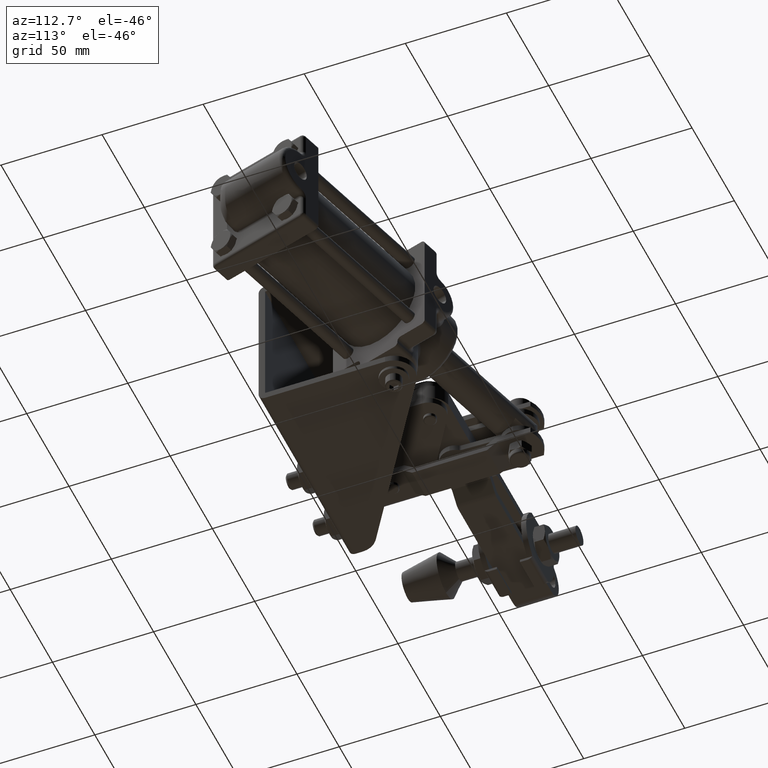
[diagram: clean part render]
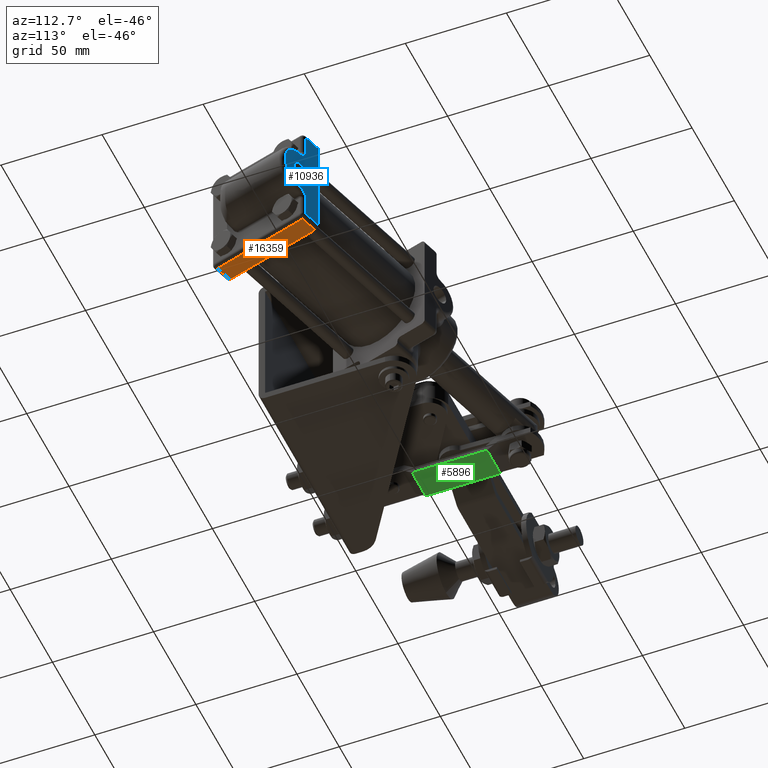
[diagram: same view with three faces highlighted in distinct colors, each labeled with its STEP entity id]
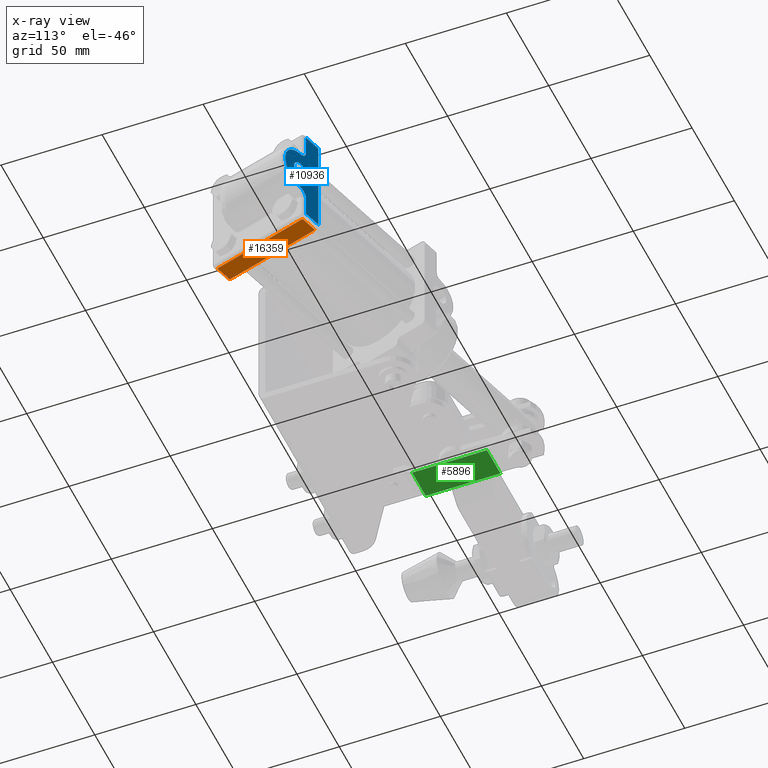
[diagram: x-ray of the same camera — body ghosted, the three highlighted faces saturated]
A machine part, auxiliary view with three faces highlighted in distinct colors.
The next image is the same camera in x-ray (body ghosted, the three faces saturated) — at least one of them is partly hidden behind the body in this view.
Their STEP definitions:

[orange] entity #16359 — the highlighted planar face has unit normal (-0, -0, 1).
#256 = LINE ( 'NONE', #23699, #33009 ) ;
#316 = DIRECTION ( 'NONE',  ( -0.2810313140745087600, -0.9596985987848241100, -7.435643982289015500E-016 ) ) ;
#1243 = PLANE ( 'NONE',  #23985 ) ;
#3454 = EDGE_CURVE ( 'NONE', #22303, #19278, #31876, .T. ) ;
#3845 = DIRECTION ( 'NONE',  ( -0.2810313140745087600, -0.9596985987848241100, -7.435643982289015500E-016 ) ) ;
#5195 = VECTOR ( 'NONE', #17502, 1000.000000000000000 ) ;
#8794 = ORIENTED_EDGE ( 'NONE', *, *, #3454, .T. ) ;
#8840 = CARTESIAN_POINT ( 'NONE',  ( 132.7649812302651900, 8.047497565152058400, -27.00000000000003600 ) ) ;
#11524 = DIRECTION ( 'NONE',  ( -1.701535394197300100E-017, -7.698068454894033500E-016, 1.000000000000000000 ) ) ;
#12055 = EDGE_CURVE ( 'NONE', #19278, #32584, #256, .T. ) ;
#14667 = ORIENTED_EDGE ( 'NONE', *, *, #12055, .T. ) ;
#15043 = CARTESIAN_POINT ( 'NONE',  ( 124.1276938412017900, 10.57677939182263800, -27.00000000000003600 ) ) ;
#16359 = ADVANCED_FACE ( 'NONE', ( #22147 ), #1243, .F. ) ;
#17321 = CARTESIAN_POINT ( 'NONE',  ( 148.7359441315603000, 55.47036487624426800, -26.99999999999999600 ) ) ;
#17365 = VECTOR ( 'NONE', #32805, 1000.000000000000000 ) ;
#17502 = DIRECTION ( 'NONE',  ( 0.2810313140745087600, 0.9596985987848241100, 7.435643982289015500E-016 ) ) ;
#17758 = CARTESIAN_POINT ( 'NONE',  ( 132.2029186021162000, 6.128100367582413300, -27.00000000000003600 ) ) ;
#18084 = EDGE_CURVE ( 'NONE', #33115, #22303, #24272, .T. ) ;
#19177 = ORIENTED_EDGE ( 'NONE', *, *, #27876, .T. ) ;
#19278 = VERTEX_POINT ( 'NONE', #8840 ) ;
#19819 = CARTESIAN_POINT ( 'NONE',  ( 146.8165469339906500, 56.03242750439328300, -26.99999999999999600 ) ) ;
#20094 = CARTESIAN_POINT ( 'NONE',  ( 138.7413221730762400, 60.48110652863350400, -26.99999999999999300 ) ) ;
#20131 = ORIENTED_EDGE ( 'NONE', *, *, #18084, .T. ) ;
#20905 = CARTESIAN_POINT ( 'NONE',  ( 138.1792595449272500, 58.56170933106385900, -26.99999999999999300 ) ) ;
#22147 = FACE_OUTER_BOUND ( 'NONE', #29609, .T. ) ;
#22303 = VERTEX_POINT ( 'NONE', #19819 ) ;
#22652 = DIRECTION ( 'NONE',  ( -0.9596985987848241100, 0.2810313140745087600, 2.000102180355001100E-016 ) ) ;
#23699 = CARTESIAN_POINT ( 'NONE',  ( 134.6843784278348700, 7.485434937003040200, -27.00000000000003600 ) ) ;
#23985 = AXIS2_PLACEMENT_3D ( 'NONE', #32245, #11524, #3845 ) ;
#24272 = LINE ( 'NONE', #17321, #17365 ) ;
#25029 = VECTOR ( 'NONE', #316, 1000.000000000000000 ) ;
#25034 = LINE ( 'NONE', #20094, #5195 ) ;
#27876 = EDGE_CURVE ( 'NONE', #32584, #33115, #25034, .T. ) ;
#29609 = EDGE_LOOP ( 'NONE', ( #8794, #14667, #19177, #20131 ) ) ;
#31876 = LINE ( 'NONE', #17758, #25029 ) ;
#32245 = CARTESIAN_POINT ( 'NONE',  ( 149.2980067597093200, 57.38976207381391200, -26.99999999999999600 ) ) ;
#32584 = VERTEX_POINT ( 'NONE', #15043 ) ;
#32805 = DIRECTION ( 'NONE',  ( 0.9596985987848241100, -0.2810313140745087600, -2.000102180355001100E-016 ) ) ;
#33009 = VECTOR ( 'NONE', #22652, 1000.000000000000000 ) ;
#33115 = VERTEX_POINT ( 'NONE', #20905 ) ;

[blue] entity #10936 — the highlighted planar face has unit normal (-0.281, -0.9597, -0).
#187 = AXIS2_PLACEMENT_3D ( 'NONE', #1631, #19754, #4237 ) ;
#670 = CARTESIAN_POINT ( 'NONE',  ( 138.7413221730762400, 60.48110652863347500, 27.00000000000001400 ) ) ;
#1350 = CARTESIAN_POINT ( 'NONE',  ( 147.3786095621396700, 57.95182470196293400, -24.99999999999999300 ) ) ;
#1631 = CARTESIAN_POINT ( 'NONE',  ( 151.2174039572789800, 56.82769944566486900, 15.00000000000000200 ) ) ;
#2083 = ORIENTED_EDGE ( 'NONE', *, *, #25411, .F. ) ;
#2185 = CARTESIAN_POINT ( 'NONE',  ( 138.7413221730762400, 60.48110652863350400, -24.99999999999998900 ) ) ;
#2864 = CARTESIAN_POINT ( 'NONE',  ( 151.2174039572789800, 56.82769944566488400, 3.261615947988468200E-014 ) ) ;
#3470 = AXIS2_PLACEMENT_3D ( 'NONE', #2864, #20996, #5481 ) ;
#3643 = CIRCLE ( 'NONE', #3470, 4.573499999999993900 ) ;
#4185 = EDGE_CURVE ( 'NONE', #10409, #14777, #12367, .T. ) ;
#4237 = DIRECTION ( 'NONE',  ( 0.0000000000000000000, 0.0000000000000000000, -1.000000000000000000 ) ) ;
#5285 = LINE ( 'NONE', #19223, #19038 ) ;
#5316 = CARTESIAN_POINT ( 'NONE',  ( 147.3786095621396700, 57.95182470196293400, -26.99999999999999300 ) ) ;
#5357 = DIRECTION ( 'NONE',  ( 0.2810313140745087600, 0.9596985987848241100, 5.508173453425898000E-016 ) ) ;
#5481 = DIRECTION ( 'NONE',  ( -0.9596985987848240000, 0.2810313140745095400, 0.0000000000000000000 ) ) ;
#5878 = ORIENTED_EDGE ( 'NONE', *, *, #4185, .T. ) ;
#5943 = CARTESIAN_POINT ( 'NONE',  ( 151.2174039572789800, 56.82769944566486900, 11.00000000000000200 ) ) ;
#6039 = CARTESIAN_POINT ( 'NONE',  ( 151.2174039572789800, 56.82769944566487700, 1.166814791433781200E-015 ) ) ;
#6656 = AXIS2_PLACEMENT_3D ( 'NONE', #20866, #5357, #23485 ) ;
#7196 = EDGE_LOOP ( 'NONE', ( #26577, #2083 ) ) ;
#7350 = DIRECTION ( 'NONE',  ( -3.715260361465609300E-017, 5.848277689145053900E-016, -1.000000000000000000 ) ) ;
#7761 = EDGE_LOOP ( 'NONE', ( #20819, #5878, #26962, #20392, #16448, #17318, #7774, #21374 ) ) ;
#7774 = ORIENTED_EDGE ( 'NONE', *, *, #17315, .T. ) ;
#7907 = DIRECTION ( 'NONE',  ( -3.715260361465609300E-017, 5.848277689145053900E-016, -1.000000000000000000 ) ) ;
#8233 = DIRECTION ( 'NONE',  ( 3.715260361465610500E-017, -5.848277689145053900E-016, 1.000000000000000000 ) ) ;
#8305 = EDGE_CURVE ( 'NONE', #30101, #31660, #19437, .T. ) ;
#8652 = DIRECTION ( 'NONE',  ( 0.0000000000000000000, 6.308085367188388300E-016, -1.000000000000000000 ) ) ;
#8935 = CIRCLE ( 'NONE', #12061, 11.00000000000000200 ) ;
#9944 = CARTESIAN_POINT ( 'NONE',  ( 147.3786095621396700, 57.95182470196290600, 12.84523257866513300 ) ) ;
#10409 = VERTEX_POINT ( 'NONE', #1350 ) ;
#10538 = CARTESIAN_POINT ( 'NONE',  ( 151.2174039572789800, 56.82769944566488400, 3.261615947988468200E-014 ) ) ;
#10936 = ADVANCED_FACE ( 'NONE', ( #18122, #24219 ), #13572, .F. ) ;
#11378 = DIRECTION ( 'NONE',  ( 0.9596985987848241100, -0.2810313140745087600, -2.000102180355001100E-016 ) ) ;
#11592 = VERTEX_POINT ( 'NONE', #5943 ) ;
#12061 = AXIS2_PLACEMENT_3D ( 'NONE', #6039, #24193, #8652 ) ;
#12367 = LINE ( 'NONE', #21330, #32202 ) ;
#12530 = VECTOR ( 'NONE', #16388, 1000.000000000000000 ) ;
#12653 = VECTOR ( 'NONE', #8233, 1000.000000000000000 ) ;
#13136 = DIRECTION ( 'NONE',  ( -0.9596985987848240000, 0.2810313140745095400, 0.0000000000000000000 ) ) ;
#13396 = CARTESIAN_POINT ( 'NONE',  ( 147.3786095621396700, 57.95182470196290600, 15.00000000000000400 ) ) ;
#13572 = PLANE ( 'NONE',  #17059 ) ;
#14570 = CIRCLE ( 'NONE', #6656, 4.000000000000001800 ) ;
#14777 = VERTEX_POINT ( 'NONE', #2185 ) ;
#16388 = DIRECTION ( 'NONE',  ( -3.715260361465609300E-017, 5.848277689145053900E-016, -1.000000000000000000 ) ) ;
#16448 = ORIENTED_EDGE ( 'NONE', *, *, #8305, .T. ) ;
#16656 = EDGE_CURVE ( 'NONE', #30558, #10409, #24430, .T. ) ;
#16780 = EDGE_CURVE ( 'NONE', #14777, #17632, #32470, .T. ) ;
#16952 = VERTEX_POINT ( 'NONE', #22637 ) ;
#17059 = AXIS2_PLACEMENT_3D ( 'NONE', #26202, #19196, #7350 ) ;
#17315 = EDGE_CURVE ( 'NONE', #11592, #22552, #8935, .T. ) ;
#17318 = ORIENTED_EDGE ( 'NONE', *, *, #29663, .F. ) ;
#17334 = CARTESIAN_POINT ( 'NONE',  ( 147.3786095621396700, 57.95182470196289900, 25.00000000000000700 ) ) ;
#17632 = VERTEX_POINT ( 'NONE', #30699 ) ;
#17761 = EDGE_CURVE ( 'NONE', #30558, #22552, #14570, .T. ) ;
#18060 = CARTESIAN_POINT ( 'NONE',  ( 146.8282224157366000, 58.11299616058464300, 3.261615947988468200E-014 ) ) ;
#18122 = FACE_BOUND ( 'NONE', #7196, .T. ) ;
#19038 = VECTOR ( 'NONE', #11378, 1000.000000000000000 ) ;
#19196 = DIRECTION ( 'NONE',  ( -0.2810313140745087600, -0.9596985987848241100, -5.508173453425895000E-016 ) ) ;
#19223 = CARTESIAN_POINT ( 'NONE',  ( 149.2980067597093200, 57.38976207381388400, 25.00000000000000700 ) ) ;
#19437 = LINE ( 'NONE', #9944, #12530 ) ;
#19596 = CIRCLE ( 'NONE', #22150, 4.573499999999993900 ) ;
#19754 = DIRECTION ( 'NONE',  ( 0.2810313140745087600, 0.9596985987848241100, 5.508173453425898000E-016 ) ) ;
#20392 = ORIENTED_EDGE ( 'NONE', *, *, #22790, .T. ) ;
#20479 = CIRCLE ( 'NONE', #187, 4.000000000000000000 ) ;
#20819 = ORIENTED_EDGE ( 'NONE', *, *, #16656, .T. ) ;
#20829 = CARTESIAN_POINT ( 'NONE',  ( 151.2174039572789800, 56.82769944566489100, -11.00000000000000200 ) ) ;
#20866 = CARTESIAN_POINT ( 'NONE',  ( 151.2174039572789800, 56.82769944566489100, -15.00000000000000200 ) ) ;
#20902 = DIRECTION ( 'NONE',  ( -0.9596985987848241100, 0.2810313140745087600, 2.000102180355001100E-016 ) ) ;
#20996 = DIRECTION ( 'NONE',  ( 0.2810313140745087600, 0.9596985987848241100, -0.0000000000000000000 ) ) ;
#21330 = CARTESIAN_POINT ( 'NONE',  ( 149.2980067597093200, 57.38976207381391200, -24.99999999999999300 ) ) ;
#21374 = ORIENTED_EDGE ( 'NONE', *, *, #17761, .F. ) ;
#22150 = AXIS2_PLACEMENT_3D ( 'NONE', #10538, #28626, #13136 ) ;
#22552 = VERTEX_POINT ( 'NONE', #20829 ) ;
#22637 = CARTESIAN_POINT ( 'NONE',  ( 155.6065854988213700, 55.54240273074512400, 3.317625169347472600E-014 ) ) ;
#22790 = EDGE_CURVE ( 'NONE', #17632, #30101, #5285, .T. ) ;
#23485 = DIRECTION ( 'NONE',  ( 0.0000000000000000000, 0.0000000000000000000, -1.000000000000000000 ) ) ;
#24193 = DIRECTION ( 'NONE',  ( 0.2810313140745087600, 0.9596985987848241100, 5.508173453425898000E-016 ) ) ;
#24219 = FACE_OUTER_BOUND ( 'NONE', #7761, .T. ) ;
#24430 = LINE ( 'NONE', #5316, #32083 ) ;
#25411 = EDGE_CURVE ( 'NONE', #16952, #28009, #19596, .T. ) ;
#26202 = CARTESIAN_POINT ( 'NONE',  ( 149.2980067597093200, 57.38976207381388400, 27.00000000000001100 ) ) ;
#26577 = ORIENTED_EDGE ( 'NONE', *, *, #31609, .F. ) ;
#26962 = ORIENTED_EDGE ( 'NONE', *, *, #16780, .T. ) ;
#28009 = VERTEX_POINT ( 'NONE', #18060 ) ;
#28626 = DIRECTION ( 'NONE',  ( 0.2810313140745087600, 0.9596985987848241100, -0.0000000000000000000 ) ) ;
#29663 = EDGE_CURVE ( 'NONE', #11592, #31660, #20479, .T. ) ;
#30101 = VERTEX_POINT ( 'NONE', #17334 ) ;
#30558 = VERTEX_POINT ( 'NONE', #33256 ) ;
#30699 = CARTESIAN_POINT ( 'NONE',  ( 138.7413221730762400, 60.48110652863347500, 25.00000000000001100 ) ) ;
#31609 = EDGE_CURVE ( 'NONE', #28009, #16952, #3643, .T. ) ;
#31660 = VERTEX_POINT ( 'NONE', #13396 ) ;
#32083 = VECTOR ( 'NONE', #7907, 1000.000000000000000 ) ;
#32202 = VECTOR ( 'NONE', #20902, 1000.000000000000000 ) ;
#32470 = LINE ( 'NONE', #670, #12653 ) ;
#33256 = CARTESIAN_POINT ( 'NONE',  ( 147.3786095621396700, 57.95182470196292000, -15.00000000000000000 ) ) ;

[green] entity #5896 — the highlighted planar face has unit normal (0, 0, -1).
#587 = EDGE_LOOP ( 'NONE', ( #11780, #14356, #32999, #7925 ) ) ;
#1676 = AXIS2_PLACEMENT_3D ( 'NONE', #9054, #27171, #7233 ) ;
#3238 = CARTESIAN_POINT ( 'NONE',  ( -33.05020596015396000, 72.00800880652805300, -13.50000000000000500 ) ) ;
#4807 = VERTEX_POINT ( 'NONE', #3238 ) ;
#5245 = VECTOR ( 'NONE', #13255, 1000.000000000000200 ) ;
#5896 = ADVANCED_FACE ( 'NONE', ( #21747 ), #21555, .T. ) ;
#6253 = LINE ( 'NONE', #31486, #19229 ) ;
#6309 = VECTOR ( 'NONE', #17176, 1000.000000000000200 ) ;
#7233 = DIRECTION ( 'NONE',  ( -0.9999994957383801000, -0.001004252451057518100, -1.838566453340541600E-018 ) ) ;
#7925 = ORIENTED_EDGE ( 'NONE', *, *, #24147, .T. ) ;
#8878 = DIRECTION ( 'NONE',  ( 0.9999994957383801000, 0.001004252451057518100, 1.838566453340541600E-018 ) ) ;
#9054 = CARTESIAN_POINT ( 'NONE',  ( -49.01304055127892000, 34.99195942499103000, -13.50000000000000700 ) ) ;
#9997 = EDGE_CURVE ( 'NONE', #28303, #17132, #17818, .T. ) ;
#10918 = VECTOR ( 'NONE', #8878, 1000.000000000000200 ) ;
#11780 = ORIENTED_EDGE ( 'NONE', *, *, #25005, .F. ) ;
#12981 = CARTESIAN_POINT ( 'NONE',  ( -33.01304861946483300, 35.00802746420794900, -13.50000000000000700 ) ) ;
#13255 = DIRECTION ( 'NONE',  ( -0.001004252451057518100, 0.9999994957383801000, 6.153892636810753800E-018 ) ) ;
#14356 = ORIENTED_EDGE ( 'NONE', *, *, #9997, .F. ) ;
#15599 = VERTEX_POINT ( 'NONE', #16591 ) ;
#16591 = CARTESIAN_POINT ( 'NONE',  ( -49.05019789196804700, 71.99194076731113500, -13.50000000000000500 ) ) ;
#17132 = VERTEX_POINT ( 'NONE', #12981 ) ;
#17176 = DIRECTION ( 'NONE',  ( 0.9999994957383801000, 0.001004252451057518100, 1.838566453340541600E-018 ) ) ;
#17369 = CARTESIAN_POINT ( 'NONE',  ( -49.01304055127892000, 34.99195942499103000, -13.50000000000000700 ) ) ;
#17818 = LINE ( 'NONE', #24771, #10918 ) ;
#18584 = DIRECTION ( 'NONE',  ( -0.001004252451057518100, 0.9999994957383801000, 6.153892636810753800E-018 ) ) ;
#19229 = VECTOR ( 'NONE', #18584, 1000.000000000000200 ) ;
#20963 = CARTESIAN_POINT ( 'NONE',  ( -49.01304055127892000, 34.99195942499103000, -13.50000000000000700 ) ) ;
#21555 = PLANE ( 'NONE',  #1676 ) ;
#21747 = FACE_OUTER_BOUND ( 'NONE', #587, .T. ) ;
#22526 = CARTESIAN_POINT ( 'NONE',  ( -49.05019789196804700, 71.99194076731113500, -13.50000000000000500 ) ) ;
#24147 = EDGE_CURVE ( 'NONE', #15599, #4807, #33024, .T. ) ;
#24771 = CARTESIAN_POINT ( 'NONE',  ( -49.01304055127892000, 34.99195942499103000, -13.50000000000000700 ) ) ;
#25005 = EDGE_CURVE ( 'NONE', #17132, #4807, #6253, .T. ) ;
#26924 = EDGE_CURVE ( 'NONE', #28303, #15599, #31935, .T. ) ;
#27171 = DIRECTION ( 'NONE',  ( 1.832385464457982200E-018, 6.155735918506085200E-018, -1.000000000000000000 ) ) ;
#28303 = VERTEX_POINT ( 'NONE', #17369 ) ;
#31486 = CARTESIAN_POINT ( 'NONE',  ( -33.01304861946483300, 35.00802746420794900, -13.50000000000000700 ) ) ;
#31935 = LINE ( 'NONE', #20963, #5245 ) ;
#32999 = ORIENTED_EDGE ( 'NONE', *, *, #26924, .T. ) ;
#33024 = LINE ( 'NONE', #22526, #6309 ) ;